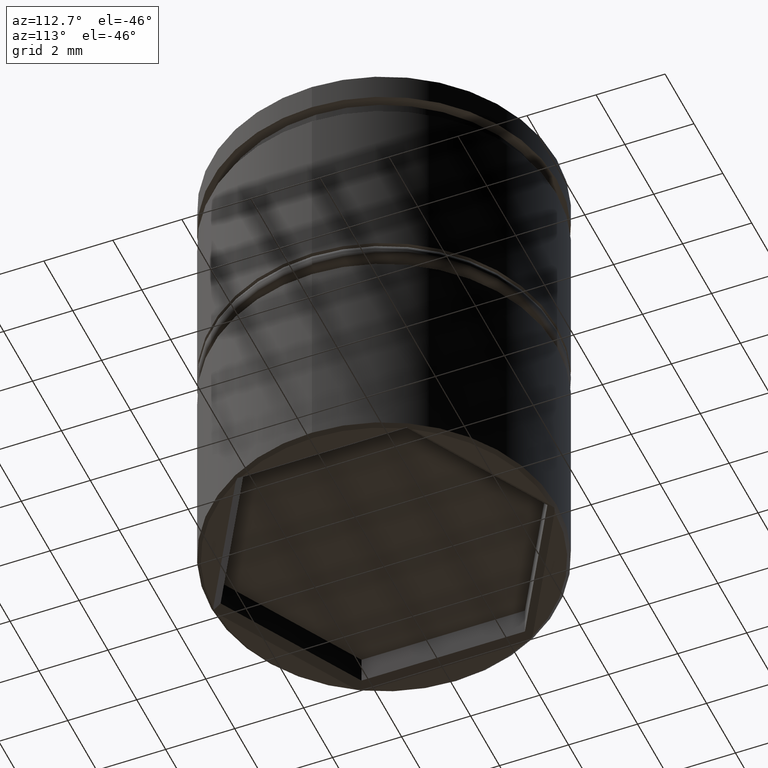
[diagram: clean part render]
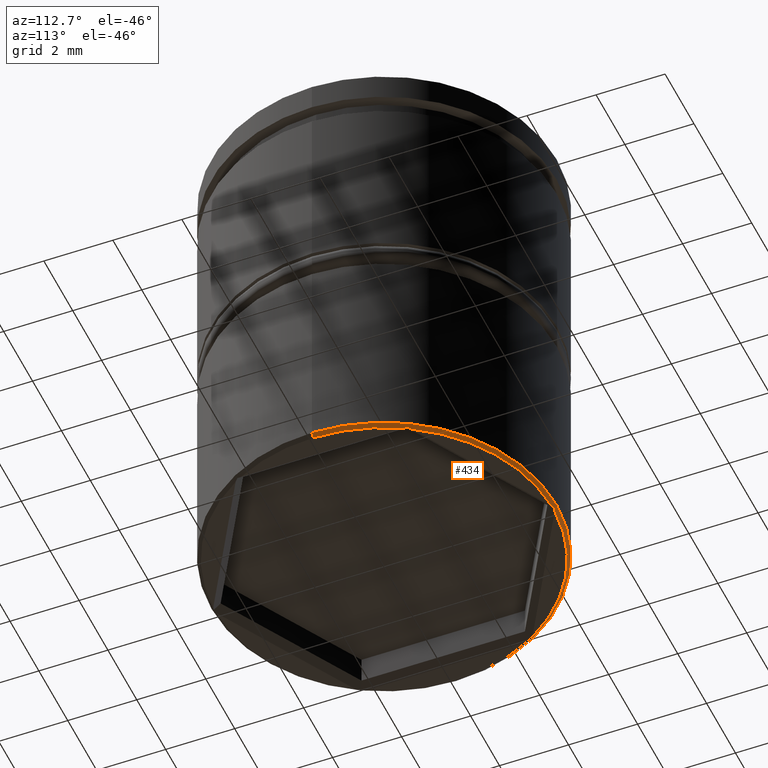
[diagram: same view with one face highlighted and labeled with its STEP entity id]
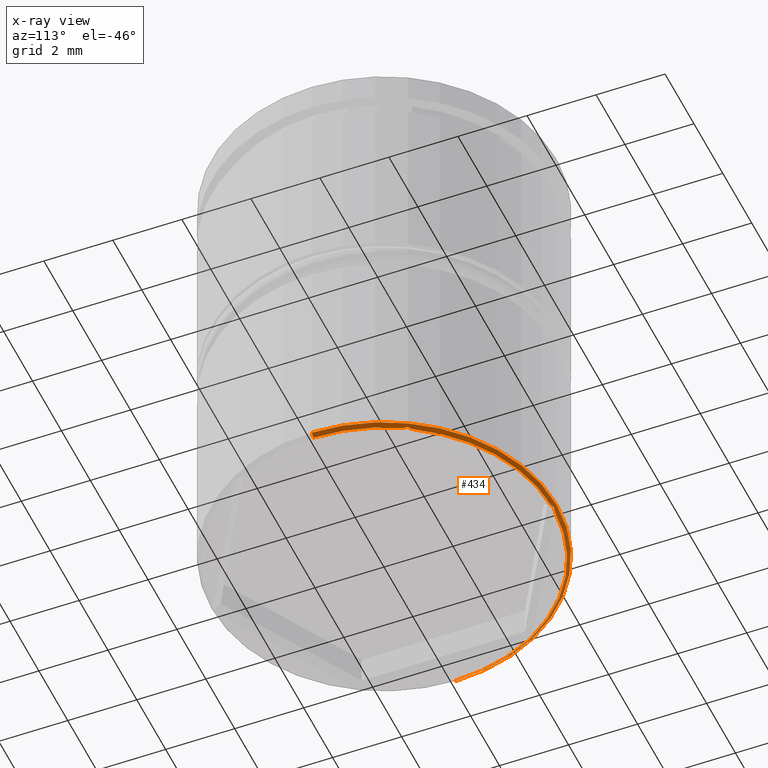
[diagram: x-ray of the same camera — body ghosted, the highlighted face saturated]
A machine part, auxiliary view. The second image highlights one B-rep face of the part: STEP entity #434.
The next image is the same camera in x-ray: the body ghosted, the highlighted face saturated — about 0% of this face is hidden behind the body in this view.
In plain terms, the highlighted conical surface has half-angle 45 deg.
Its self-contained STEP definition (entity closure, byte-faithful):
#2 = B_SPLINE_CURVE_WITH_KNOTS ( 'NONE', 3,
 ( #589, #296, #614, #719 ),
 .UNSPECIFIED., .F., .F.,
 ( 4, 4 ),
 ( 5.370462125092774978E-19, 0.0001233298202642872231 ),
 .UNSPECIFIED. ) ;
#65 = CARTESIAN_POINT ( 'NONE',  ( -5.000000000000000000, 6.123233995736766282E-16, -13.40000000000000213 ) ) ;
#94 = CARTESIAN_POINT ( 'NONE',  ( -4.300000000000001599, 2.349468024894149298, -13.50000000000000000 ) ) ;
#106 = EDGE_CURVE ( 'NONE', #970, #950, #1167, .T. ) ;
#112 = CARTESIAN_POINT ( 'NONE',  ( -4.290125711785985452, 2.388133565606518793, -13.49012571178598208 ) ) ;
#117 = ORIENTED_EDGE ( 'NONE', *, *, #1239, .F. ) ;
#134 = CARTESIAN_POINT ( 'NONE',  ( 4.269734859267344973, 2.465132570366329823, -13.46973485926734249 ) ) ;
#144 = CARTESIAN_POINT ( 'NONE',  ( -4.900000000000003020, 6.062001655779400483E-16, -13.50000000000000000 ) ) ;
#155 = DIRECTION ( 'NONE',  ( -1.000000000000000000, 0.000000000000000000, 0.000000000000000000 ) ) ;
#156 = ORIENTED_EDGE ( 'NONE', *, *, #815, .F. ) ;
#162 = VERTEX_POINT ( 'NONE', #1202 ) ;
#167 = ORIENTED_EDGE ( 'NONE', *, *, #1182, .F. ) ;
#169 = AXIS2_PLACEMENT_3D ( 'NONE', #341, #739, #225 ) ;
#179 = ORIENTED_EDGE ( 'NONE', *, *, #450, .T. ) ;
#187 = DIRECTION ( 'NONE',  ( 0.000000000000000000, 0.000000000000000000, -1.000000000000000000 ) ) ;
#193 = VERTEX_POINT ( 'NONE', #677 ) ;
#199 = ORIENTED_EDGE ( 'NONE', *, *, #520, .T. ) ;
#209 = B_SPLINE_CURVE_WITH_KNOTS ( 'NONE', 3,
 ( #506, #1339, #907, #601 ),
 .UNSPECIFIED., .F., .F.,
 ( 4, 4 ),
 ( 0.000000000000000000, 0.0001233298202642906655 ),
 .UNSPECIFIED. ) ;
#215 = CARTESIAN_POINT ( 'NONE',  ( 0.03844244460728216822, 4.919964518745060467, -13.48003548125494255 ) ) ;
#225 = DIRECTION ( 'NONE',  ( -1.000000000000000000, 0.000000000000000000, 0.000000000000000000 ) ) ;
#263 = CARTESIAN_POINT ( 'NONE',  ( 0.000000000000000000, 0.000000000000000000, -13.50000000000000000 ) ) ;
#266 = CARTESIAN_POINT ( 'NONE',  ( 0.000000000000000000, 0.000000000000000000, -13.50000000000000000 ) ) ;
#295 = DIRECTION ( 'NONE',  ( -0.000000000000000000, -0.000000000000000000, 1.000000000000000000 ) ) ;
#296 = CARTESIAN_POINT ( 'NONE',  ( -0.03844244460728316048, 4.919964518745059578, -13.48003548125494255 ) ) ;
#332 = AXIS2_PLACEMENT_3D ( 'NONE', #266, #936, #690 ) ;
#336 = VECTOR ( 'NONE', #1136, 1000.000000000000000 ) ;
#341 = CARTESIAN_POINT ( 'NONE',  ( 0.000000000000000000, 0.000000000000000000, -13.50000000000000000 ) ) ;
#342 = ORIENTED_EDGE ( 'NONE', *, *, #768, .T. ) ;
#346 = EDGE_CURVE ( 'NONE', #1061, #970, #883, .T. ) ;
#372 = B_SPLINE_CURVE_WITH_KNOTS ( 'NONE', 3,
 ( #1053, #867, #947, #1056 ),
 .UNSPECIFIED., .F., .F.,
 ( 4, 4 ),
 ( 0.000000000000000000, 0.0001233298202642858679 ),
 .UNSPECIFIED. ) ;
#381 = AXIS2_PLACEMENT_3D ( 'NONE', #861, #427, #633 ) ;
#383 = ORIENTED_EDGE ( 'NONE', *, *, #734, .T. ) ;
#385 = CIRCLE ( 'NONE', #733, 4.900000000000003020 ) ;
#391 = ORIENTED_EDGE ( 'NONE', *, *, #533, .T. ) ;
#406 = CARTESIAN_POINT ( 'NONE',  ( 4.184698994937585681, 2.549175223826012360, -13.50000000000000000 ) ) ;
#411 = VERTEX_POINT ( 'NONE', #406 ) ;
#424 = AXIS2_PLACEMENT_3D ( 'NONE', #832, #521, #596 ) ;
#427 = DIRECTION ( 'NONE',  ( -0.000000000000000000, -0.000000000000000000, 1.000000000000000000 ) ) ;
#434 = ADVANCED_FACE ( 'NONE', ( #627 ), #578, .T. ) ;
#435 = CARTESIAN_POINT ( 'NONE',  ( 4.213247191338550302, 2.521291069032199239, -13.49012571178598208 ) ) ;
#448 = CIRCLE ( 'NONE', #169, 4.900000000000003020 ) ;
#450 = EDGE_CURVE ( 'NONE', #1061, #1300, #372, .T. ) ;
#476 = CARTESIAN_POINT ( 'NONE',  ( -4.184698994937582128, 2.549175223826017245, -13.50000000000000000 ) ) ;
#482 = DIRECTION ( 'NONE',  ( -1.000000000000000000, 0.000000000000000000, 0.000000000000000000 ) ) ;
#496 = EDGE_CURVE ( 'NONE', #1337, #1276, #448, .T. ) ;
#506 = CARTESIAN_POINT ( 'NONE',  ( -4.184698994937582128, 2.549175223826017245, -13.50000000000000000 ) ) ;
#520 = EDGE_CURVE ( 'NONE', #1300, #411, #1108, .T. ) ;
#521 = DIRECTION ( 'NONE',  ( 0.000000000000000000, 0.000000000000000000, -1.000000000000000000 ) ) ;
#524 = AXIS2_PLACEMENT_3D ( 'NONE', #928, #295, #155 ) ;
#531 = CARTESIAN_POINT ( 'NONE',  ( 4.900000000000003020, 0.000000000000000000, -13.50000000000000000 ) ) ;
#533 = EDGE_CURVE ( 'NONE', #767, #1003, #554, .T. ) ;
#542 = ORIENTED_EDGE ( 'NONE', *, *, #496, .F. ) ;
#550 = CARTESIAN_POINT ( 'NONE',  ( -3.274352596443133831E-16, 4.930265140732660534, -13.46973485926734249 ) ) ;
#553 = EDGE_LOOP ( 'NONE', ( #156, #1357, #117, #569, #1169, #179, #199, #167, #391, #383, #542, #342, #934 ) ) ;
#554 = B_SPLINE_CURVE_WITH_KNOTS ( 'NONE', 3,
 ( #743, #1166, #215, #550 ),
 .UNSPECIFIED., .F., .F.,
 ( 4, 4 ),
 ( 1.897353801849632760E-19, 0.0001233298202642871960 ),
 .UNSPECIFIED. ) ;
#569 = ORIENTED_EDGE ( 'NONE', *, *, #106, .F. ) ;
#578 = CONICAL_SURFACE ( 'NONE', #381, 5.000000000000000000, 0.7853981633974439491 ) ;
#589 = CARTESIAN_POINT ( 'NONE',  ( -3.274352596443133831E-16, 4.930265140732660534, -13.46973485926734249 ) ) ;
#596 = DIRECTION ( 'NONE',  ( -1.000000000000000000, 0.000000000000000000, 0.000000000000000000 ) ) ;
#601 = CARTESIAN_POINT ( 'NONE',  ( -4.269734859267344973, 2.465132570366331155, -13.46973485926734249 ) ) ;
#614 = CARTESIAN_POINT ( 'NONE',  ( -0.07687852044743719027, 4.909424634638718921, -13.49012571178598208 ) ) ;
#627 = FACE_OUTER_BOUND ( 'NONE', #553, .T. ) ;
#633 = DIRECTION ( 'NONE',  ( 1.000000000000000000, 0.000000000000000000, 0.000000000000000000 ) ) ;
#635 = VERTEX_POINT ( 'NONE', #1090 ) ;
#648 = CARTESIAN_POINT ( 'NONE',  ( 4.184698994937585681, 2.549175223826012360, -13.50000000000000000 ) ) ;
#677 = CARTESIAN_POINT ( 'NONE',  ( -4.300000000000001599, 2.349468024894149298, -13.50000000000000000 ) ) ;
#690 = DIRECTION ( 'NONE',  ( -1.000000000000000000, 0.000000000000000000, 0.000000000000000000 ) ) ;
#719 = CARTESIAN_POINT ( 'NONE',  ( -0.1153010050624191790, 4.898643248720163434, -13.50000000000000000 ) ) ;
#733 = AXIS2_PLACEMENT_3D ( 'NONE', #263, #187, #482 ) ;
#734 = EDGE_CURVE ( 'NONE', #1003, #1276, #2, .T. ) ;
#739 = DIRECTION ( 'NONE',  ( 0.000000000000000000, 0.000000000000000000, -1.000000000000000000 ) ) ;
#743 = CARTESIAN_POINT ( 'NONE',  ( 0.1153010050624178467, 4.898643248720162546, -13.50000000000000000 ) ) ;
#767 = VERTEX_POINT ( 'NONE', #1036 ) ;
#768 = EDGE_CURVE ( 'NONE', #1337, #162, #209, .T. ) ;
#815 = EDGE_CURVE ( 'NONE', #1050, #193, #1260, .T. ) ;
#832 = CARTESIAN_POINT ( 'NONE',  ( 0.000000000000000000, 0.000000000000000000, -13.50000000000000000 ) ) ;
#839 = CARTESIAN_POINT ( 'NONE',  ( -4.280035481254944152, 2.426690125759048744, -13.48003548125494255 ) ) ;
#861 = CARTESIAN_POINT ( 'NONE',  ( 0.000000000000000000, 0.000000000000000000, -13.40000000000000213 ) ) ;
#867 = CARTESIAN_POINT ( 'NONE',  ( 4.290125711785984564, 2.388133565606518793, -13.49012571178598208 ) ) ;
#883 = CIRCLE ( 'NONE', #424, 4.900000000000003020 ) ;
#900 = EDGE_CURVE ( 'NONE', #162, #193, #1381, .T. ) ;
#907 = CARTESIAN_POINT ( 'NONE',  ( -4.241593036647660853, 2.493274392986014831, -13.48003548125494255 ) ) ;
#928 = CARTESIAN_POINT ( 'NONE',  ( 0.000000000000000000, 0.000000000000000000, -13.40000000000000213 ) ) ;
#934 = ORIENTED_EDGE ( 'NONE', *, *, #900, .T. ) ;
#936 = DIRECTION ( 'NONE',  ( 0.000000000000000000, 0.000000000000000000, -1.000000000000000000 ) ) ;
#947 = CARTESIAN_POINT ( 'NONE',  ( 4.280035481254944152, 2.426690125759047856, -13.48003548125494255 ) ) ;
#950 = VERTEX_POINT ( 'NONE', #1165 ) ;
#957 = CARTESIAN_POINT ( 'NONE',  ( 4.269734859267344973, 2.465132570366329823, -13.46973485926734249 ) ) ;
#970 = VERTEX_POINT ( 'NONE', #531 ) ;
#1003 = VERTEX_POINT ( 'NONE', #1052 ) ;
#1006 = DIRECTION ( 'NONE',  ( 0.7071067811865444641, 0.000000000000000000, 0.7071067811865505703 ) ) ;
#1024 = CIRCLE ( 'NONE', #524, 5.000000000000000000 ) ;
#1036 = CARTESIAN_POINT ( 'NONE',  ( 0.1153010050624178467, 4.898643248720162546, -13.50000000000000000 ) ) ;
#1050 = VERTEX_POINT ( 'NONE', #144 ) ;
#1052 = CARTESIAN_POINT ( 'NONE',  ( -3.274352596443133831E-16, 4.930265140732660534, -13.46973485926734249 ) ) ;
#1053 = CARTESIAN_POINT ( 'NONE',  ( 4.300000000000001599, 2.349468024894150187, -13.50000000000000000 ) ) ;
#1056 = CARTESIAN_POINT ( 'NONE',  ( 4.269734859267344973, 2.465132570366329823, -13.46973485926734249 ) ) ;
#1061 = VERTEX_POINT ( 'NONE', #1073 ) ;
#1073 = CARTESIAN_POINT ( 'NONE',  ( 4.300000000000001599, 2.349468024894150187, -13.50000000000000000 ) ) ;
#1090 = CARTESIAN_POINT ( 'NONE',  ( -5.000000000000000000, 6.123233995736766282E-16, -13.40000000000000213 ) ) ;
#1108 = B_SPLINE_CURVE_WITH_KNOTS ( 'NONE', 3,
 ( #957, #1375, #435, #648 ),
 .UNSPECIFIED., .F., .F.,
 ( 4, 4 ),
 ( 0.000000000000000000, 0.0001233298202642852987 ),
 .UNSPECIFIED. ) ;
#1136 = DIRECTION ( 'NONE',  ( -0.7071067811865444641, 8.659560562354895880E-17, 0.7071067811865505703 ) ) ;
#1142 = CARTESIAN_POINT ( 'NONE',  ( -0.1153010050624191790, 4.898643248720163434, -13.50000000000000000 ) ) ;
#1162 = EDGE_CURVE ( 'NONE', #1050, #635, #1228, .T. ) ;
#1165 = CARTESIAN_POINT ( 'NONE',  ( 5.000000000000000000, 0.000000000000000000, -13.40000000000000213 ) ) ;
#1166 = CARTESIAN_POINT ( 'NONE',  ( 0.07687852044743631597, 4.909424634638720697, -13.49012571178598208 ) ) ;
#1167 = LINE ( 'NONE', #1382, #1269 ) ;
#1169 = ORIENTED_EDGE ( 'NONE', *, *, #346, .F. ) ;
#1182 = EDGE_CURVE ( 'NONE', #767, #411, #385, .T. ) ;
#1202 = CARTESIAN_POINT ( 'NONE',  ( -4.269734859267344973, 2.465132570366331155, -13.46973485926734249 ) ) ;
#1228 = LINE ( 'NONE', #65, #336 ) ;
#1239 = EDGE_CURVE ( 'NONE', #950, #635, #1024, .T. ) ;
#1258 = CARTESIAN_POINT ( 'NONE',  ( -4.269734859267344973, 2.465132570366331155, -13.46973485926734249 ) ) ;
#1260 = CIRCLE ( 'NONE', #332, 4.900000000000003020 ) ;
#1269 = VECTOR ( 'NONE', #1006, 1000.000000000000000 ) ;
#1276 = VERTEX_POINT ( 'NONE', #1142 ) ;
#1300 = VERTEX_POINT ( 'NONE', #134 ) ;
#1337 = VERTEX_POINT ( 'NONE', #476 ) ;
#1339 = CARTESIAN_POINT ( 'NONE',  ( -4.213247191338548525, 2.521291069032204124, -13.49012571178598208 ) ) ;
#1357 = ORIENTED_EDGE ( 'NONE', *, *, #1162, .T. ) ;
#1375 = CARTESIAN_POINT ( 'NONE',  ( 4.241593036647661741, 2.493274392986012167, -13.48003548125494255 ) ) ;
#1381 = B_SPLINE_CURVE_WITH_KNOTS ( 'NONE', 3,
 ( #1258, #839, #112, #94 ),
 .UNSPECIFIED., .F., .F.,
 ( 4, 4 ),
 ( 4.336808689942017736E-19, 0.0001233298202642885242 ),
 .UNSPECIFIED. ) ;
#1382 = CARTESIAN_POINT ( 'NONE',  ( 5.000000000000000000, 0.000000000000000000, -13.40000000000000213 ) ) ;